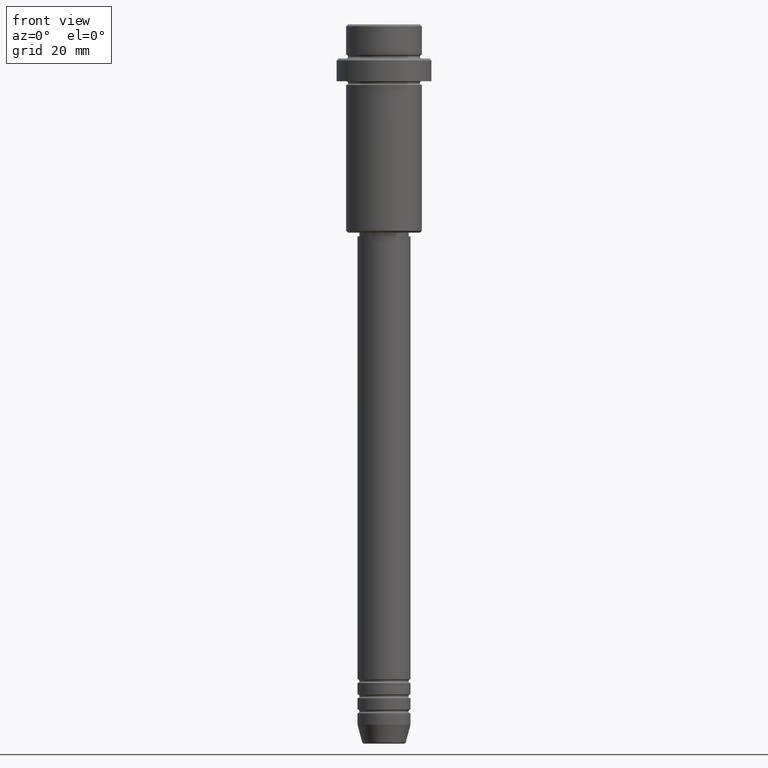
[diagram: clean part render]
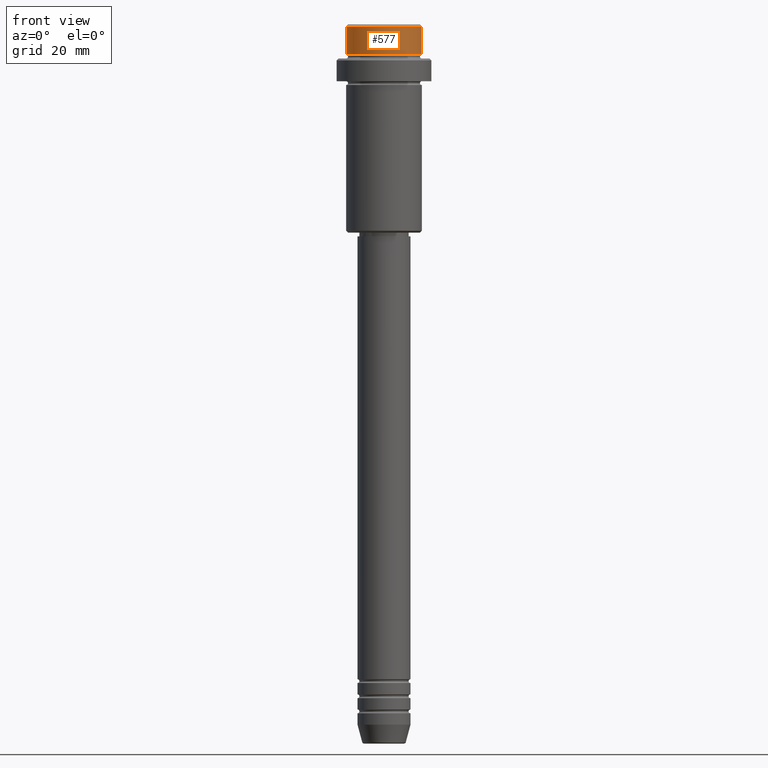
[diagram: same view with one face highlighted and labeled with its STEP entity id]
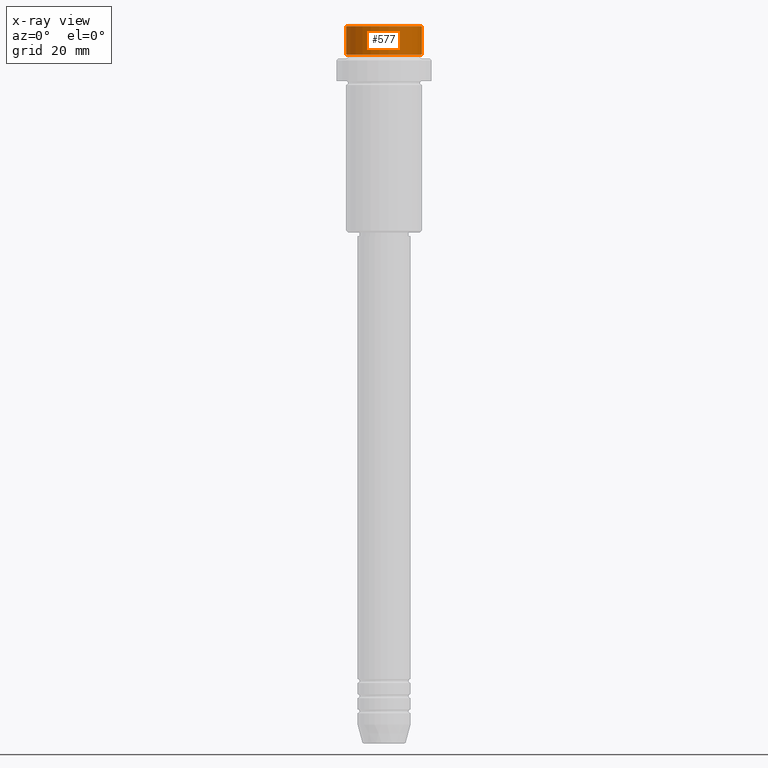
[diagram: x-ray of the same camera — body ghosted, the highlighted face saturated]
A machine part, front view. The second image highlights one B-rep face of the part: STEP entity #577.
The next image is the same camera in x-ray: the body ghosted, the highlighted face saturated — about 0% of this face is hidden behind the body in this view.
In plain terms, the highlighted cylindrical surface (partial cylindrical patch) has radius 10 mm, axis along (-0, -0, 1).
Its self-contained STEP definition (entity closure, byte-faithful):
#194 = CARTESIAN_POINT ( 'NONE',  ( 0.000000000000000000, 0.000000000000000000, -7.999999999999998224 ) ) ;
#217 = CARTESIAN_POINT ( 'NONE',  ( 0.000000000000000000, 0.000000000000000000, -0.4999999999999970024 ) ) ;
#231 = VERTEX_POINT ( 'NONE', #1102 ) ;
#244 = ORIENTED_EDGE ( 'NONE', *, *, #340, .T. ) ;
#245 = EDGE_CURVE ( 'NONE', #1382, #1393, #1083, .T. ) ;
#247 = LINE ( 'NONE', #666, #636 ) ;
#325 = EDGE_CURVE ( 'NONE', #231, #968, #247, .T. ) ;
#340 = EDGE_CURVE ( 'NONE', #1393, #968, #419, .T. ) ;
#419 = CIRCLE ( 'NONE', #958, 9.999999999999998224 ) ;
#442 = CARTESIAN_POINT ( 'NONE',  ( 9.999999999999998224, 0.000000000000000000, -7.999999999999998224 ) ) ;
#447 = DIRECTION ( 'NONE',  ( -0.000000000000000000, -0.000000000000000000, 1.000000000000000000 ) ) ;
#534 = DIRECTION ( 'NONE',  ( -0.000000000000000000, -0.000000000000000000, 1.000000000000000000 ) ) ;
#577 = ADVANCED_FACE ( 'NONE', ( #648 ), #888, .T. ) ;
#607 = DIRECTION ( 'NONE',  ( 1.000000000000000000, 0.000000000000000000, 0.000000000000000000 ) ) ;
#636 = VECTOR ( 'NONE', #447, 1000.000000000000000 ) ;
#643 = DIRECTION ( 'NONE',  ( 0.000000000000000000, 0.000000000000000000, -1.000000000000000000 ) ) ;
#648 = FACE_OUTER_BOUND ( 'NONE', #1239, .T. ) ;
#666 = CARTESIAN_POINT ( 'NONE',  ( -9.999999999999998224, 1.224646799147353059E-15, 0.000000000000000000 ) ) ;
#688 = ORIENTED_EDGE ( 'NONE', *, *, #245, .T. ) ;
#775 = VECTOR ( 'NONE', #966, 1000.000000000000000 ) ;
#791 = ORIENTED_EDGE ( 'NONE', *, *, #1285, .T. ) ;
#804 = AXIS2_PLACEMENT_3D ( 'NONE', #1323, #534, #1306 ) ;
#844 = CIRCLE ( 'NONE', #1136, 9.999999999999998224 ) ;
#857 = CARTESIAN_POINT ( 'NONE',  ( -9.999999999999998224, 1.224646799147353059E-15, -0.4999999999999970024 ) ) ;
#888 = CYLINDRICAL_SURFACE ( 'NONE', #804, 9.999999999999998224 ) ;
#895 = CARTESIAN_POINT ( 'NONE',  ( 9.999999999999998224, 0.000000000000000000, 0.000000000000000000 ) ) ;
#958 = AXIS2_PLACEMENT_3D ( 'NONE', #217, #643, #607 ) ;
#966 = DIRECTION ( 'NONE',  ( -0.000000000000000000, -0.000000000000000000, 1.000000000000000000 ) ) ;
#968 = VERTEX_POINT ( 'NONE', #857 ) ;
#1083 = LINE ( 'NONE', #895, #775 ) ;
#1087 = CARTESIAN_POINT ( 'NONE',  ( 9.999999999999998224, 0.000000000000000000, -0.4999999999999970024 ) ) ;
#1102 = CARTESIAN_POINT ( 'NONE',  ( -9.999999999999998224, 1.224646799147353059E-15, -7.999999999999998224 ) ) ;
#1136 = AXIS2_PLACEMENT_3D ( 'NONE', #194, #1243, #1290 ) ;
#1239 = EDGE_LOOP ( 'NONE', ( #1278, #791, #688, #244 ) ) ;
#1243 = DIRECTION ( 'NONE',  ( -0.000000000000000000, -0.000000000000000000, 1.000000000000000000 ) ) ;
#1278 = ORIENTED_EDGE ( 'NONE', *, *, #325, .F. ) ;
#1285 = EDGE_CURVE ( 'NONE', #231, #1382, #844, .T. ) ;
#1290 = DIRECTION ( 'NONE',  ( 1.000000000000000000, 0.000000000000000000, 0.000000000000000000 ) ) ;
#1306 = DIRECTION ( 'NONE',  ( 1.000000000000000000, 0.000000000000000000, 0.000000000000000000 ) ) ;
#1323 = CARTESIAN_POINT ( 'NONE',  ( 0.000000000000000000, 0.000000000000000000, 0.000000000000000000 ) ) ;
#1382 = VERTEX_POINT ( 'NONE', #442 ) ;
#1393 = VERTEX_POINT ( 'NONE', #1087 ) ;